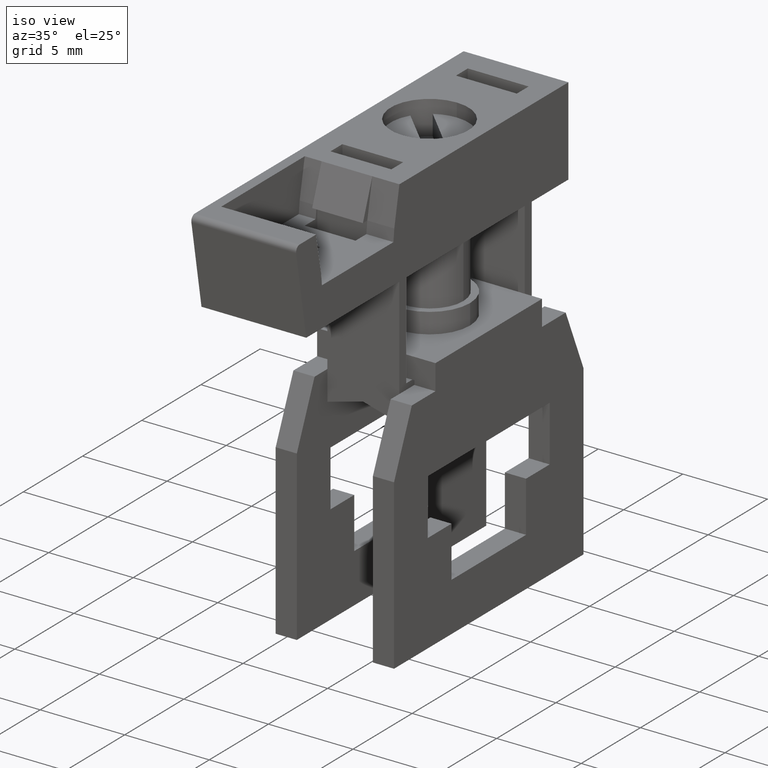
[diagram: clean part render]
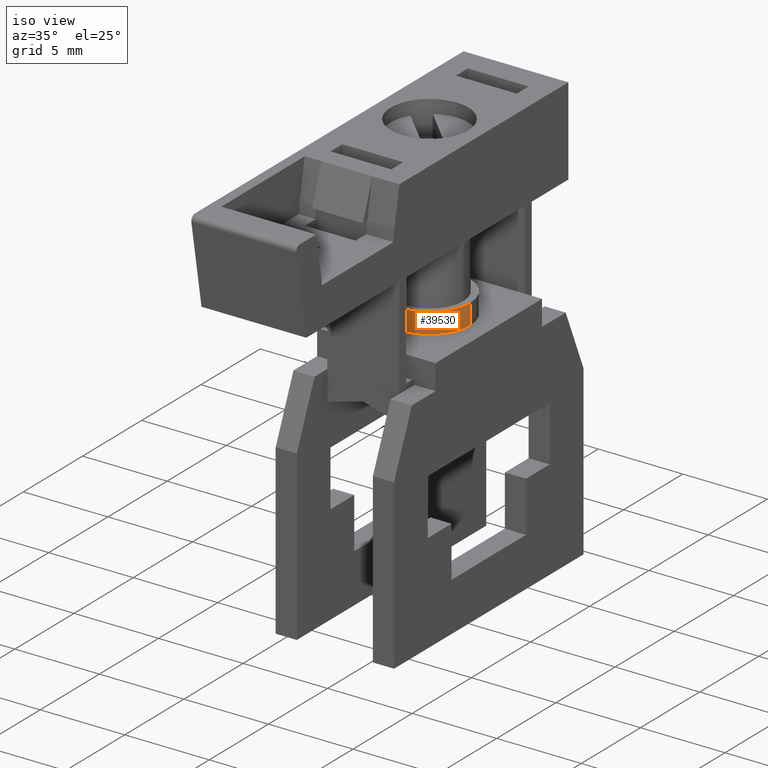
[diagram: same view with one face highlighted and labeled with its STEP entity id]
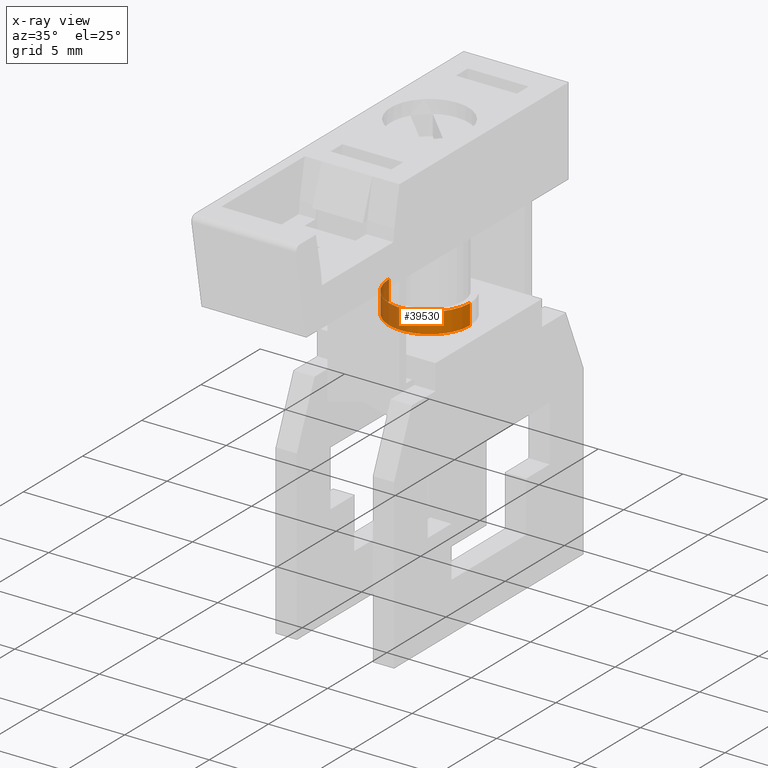
[diagram: x-ray of the same camera — body ghosted, the highlighted face saturated]
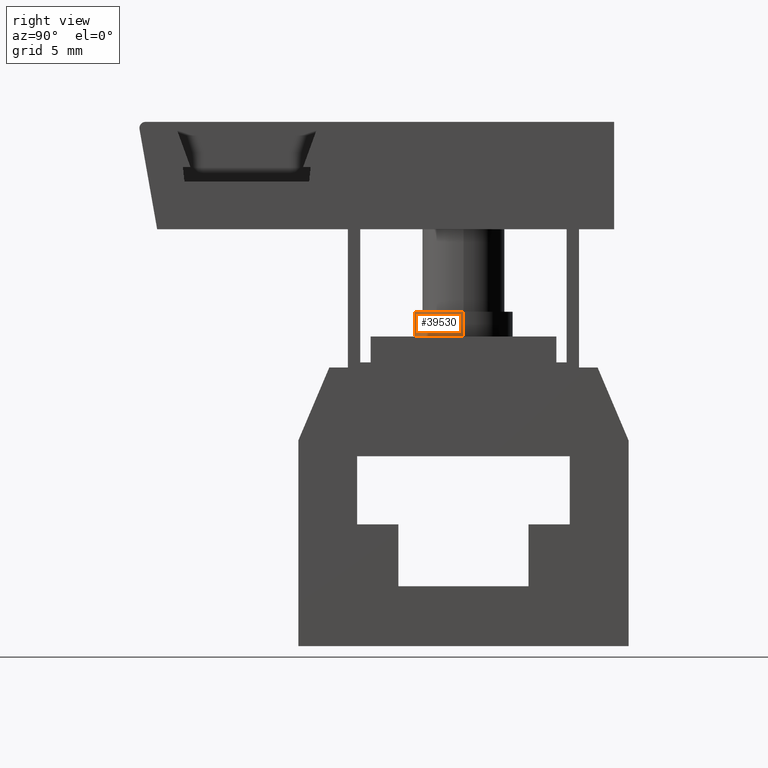
[diagram: same view with one face highlighted and labeled with its STEP entity id]
A machine part, iso view. The second image highlights one B-rep face of the part: STEP entity #39530.
The next image is the same camera in x-ray: the body ghosted, the highlighted face saturated — about 31% of this face is hidden behind the body in this view.
A second angle (right view) of the same face is appended — the face is thin or edge-on in the first view.
In plain terms, the highlighted cylindrical surface (partial cylindrical patch) has radius 2.4 mm, axis along (-0, 0, 1).
Its self-contained STEP definition (entity closure, byte-faithful):
#14940=CARTESIAN_POINT('',(-3.5,21.7,8.));
#14950=DIRECTION('',(0.,1.,0.));
#14960=DIRECTION('',(-1.,0.,0.));
#14970=AXIS2_PLACEMENT_3D('',#14940,#14950,#14960);
#14980=CIRCLE('',#14970,2.4);
#14990=CARTESIAN_POINT('',(-5.9,21.7,8.));
#15000=VERTEX_POINT('',#14990);
#15010=CARTESIAN_POINT('',(-1.1,21.7,8.));
#15020=VERTEX_POINT('',#15010);
#15030=EDGE_CURVE('',#15000,#15020,#14980,.T.);
#15220=CARTESIAN_POINT('',(-5.9,20.5,8.));
#15230=DIRECTION('',(0.,1.,0.));
#15240=VECTOR('',#15230,1.);
#15250=LINE('',#15220,#15240);
#15260=CARTESIAN_POINT('',(-5.9,20.5,8.));
#15270=VERTEX_POINT('',#15260);
#15280=EDGE_CURVE('',#15270,#15000,#15250,.T.);
#15300=CARTESIAN_POINT('',(-3.5,20.5,8.));
#15310=DIRECTION('',(0.,1.,0.));
#15320=DIRECTION('',(-1.,0.,0.));
#15330=AXIS2_PLACEMENT_3D('',#15300,#15310,#15320);
#15340=CIRCLE('',#15330,2.4);
#15350=CARTESIAN_POINT('',(-1.1,20.5,8.));
#15360=VERTEX_POINT('',#15350);
#15390=CARTESIAN_POINT('',(-1.1,20.5,8.));
#15400=DIRECTION('',(0.,1.,0.));
#15410=VECTOR('',#15400,1.);
#15420=LINE('',#15390,#15410);
#15430=EDGE_CURVE('',#15360,#15020,#15420,.T.);
#15610=EDGE_CURVE('',#15270,#15360,#15340,.T.);
#39420=CARTESIAN_POINT('',(-3.5,20.5,8.));
#39430=DIRECTION('',(0.,1.,0.));
#39440=DIRECTION('',(-1.,0.,0.));
#39450=AXIS2_PLACEMENT_3D('',#39420,#39430,#39440);
#39460=CYLINDRICAL_SURFACE('',#39450,2.4);
#39470=ORIENTED_EDGE('',*,*,#15030,.F.);
#39480=ORIENTED_EDGE('',*,*,#15430,.T.);
#39490=ORIENTED_EDGE('',*,*,#15610,.T.);
#39500=ORIENTED_EDGE('',*,*,#15280,.F.);
#39510=EDGE_LOOP('',(#39500,#39490,#39480,#39470));
#39520=FACE_OUTER_BOUND('',#39510,.T.);
#39530=ADVANCED_FACE('',(#39520),#39460,.T.);